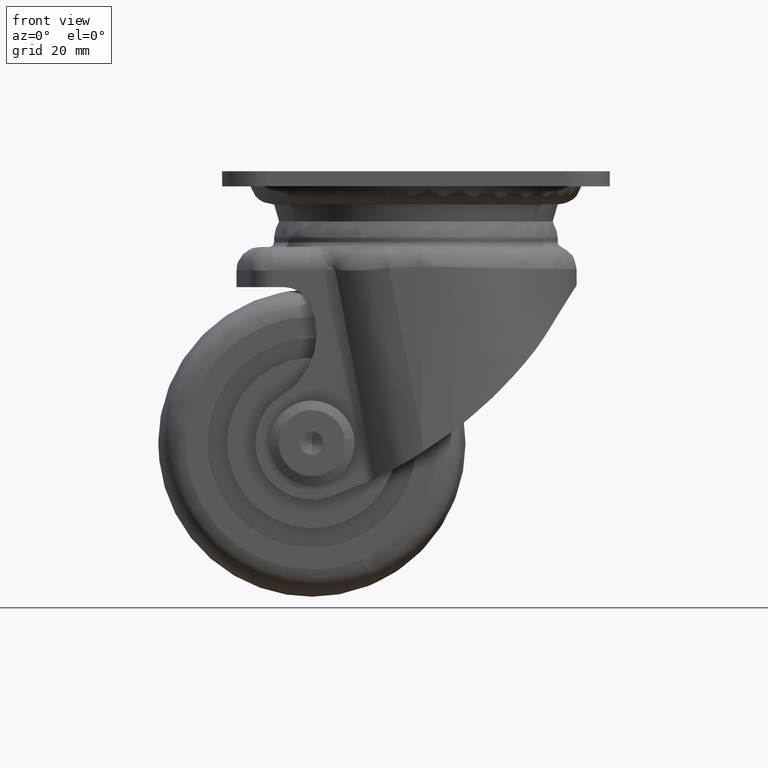
[diagram: clean part render]
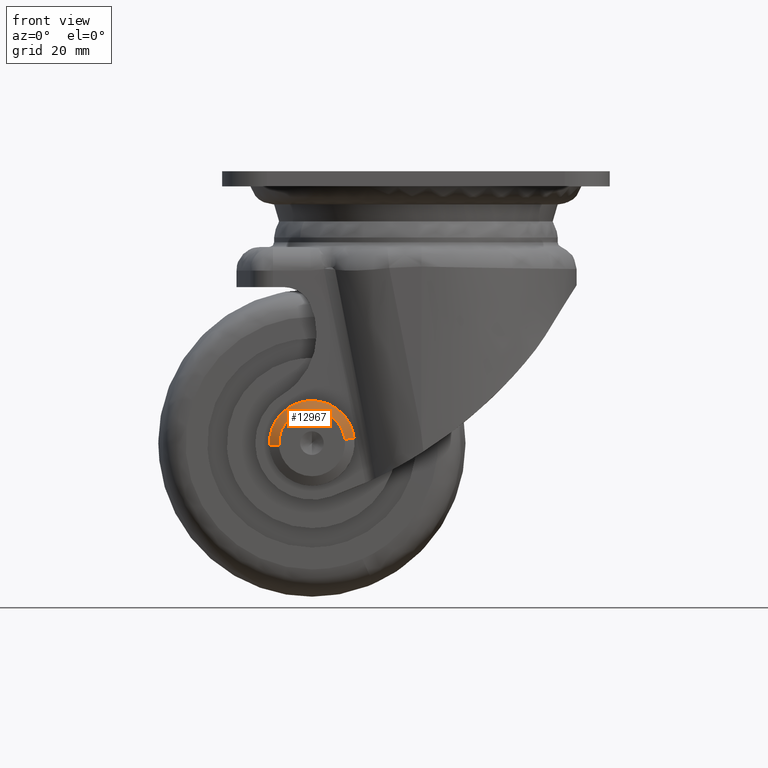
[diagram: same view with one face highlighted and labeled with its STEP entity id]
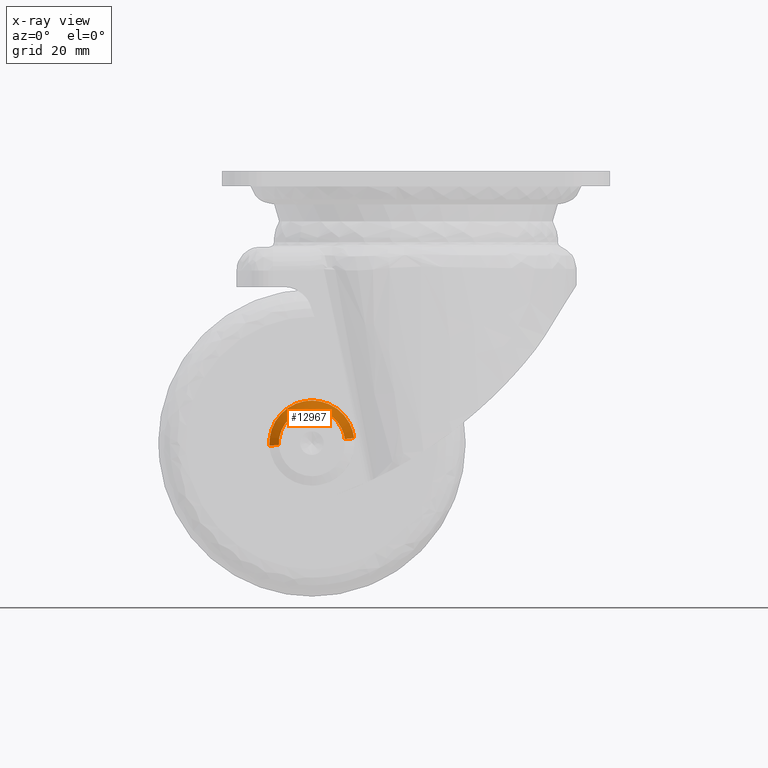
[diagram: x-ray of the same camera — body ghosted, the highlighted face saturated]
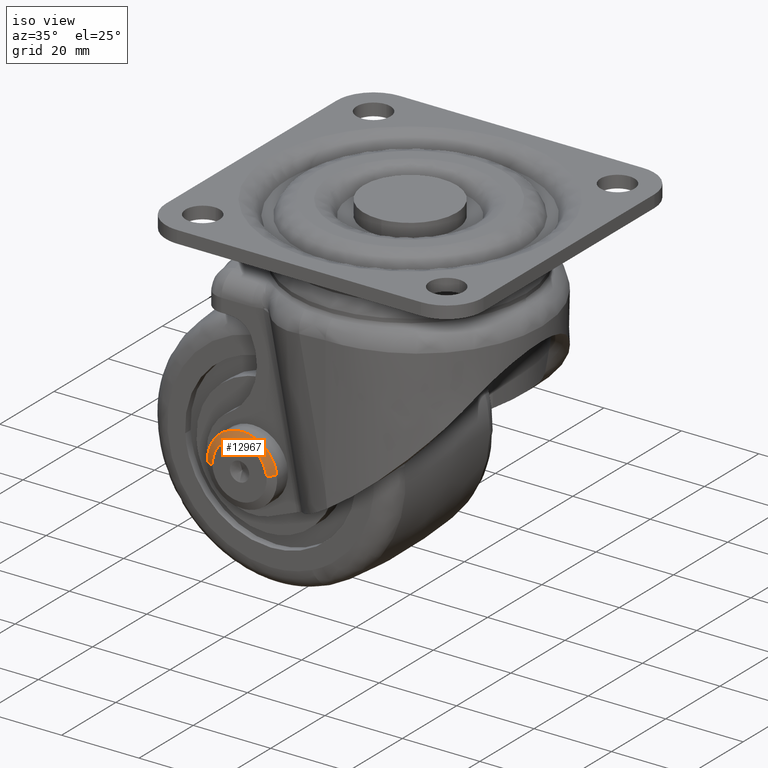
[diagram: same view with one face highlighted and labeled with its STEP entity id]
A machine part, front view. The second image highlights one B-rep face of the part: STEP entity #12967.
The next image is the same camera in x-ray: the body ghosted, the highlighted face saturated — about 0% of this face is hidden behind the body in this view.
A second angle (iso view) of the same face is appended — the face is thin or edge-on in the first view.
In plain terms, the highlighted face is a freeform B-spline surface patch.
Its self-contained STEP definition (entity closure, byte-faithful):
#12675=CARTESIAN_POINT('',(-8.983214683009809,-29.699996999981870,-58.049436947509733));
#12676=VERTEX_POINT('',#12675);
#12757=CARTESIAN_POINT('',(8.937087727342478,-29.699996997588169,-56.437691645228817));
#12758=VERTEX_POINT('',#12757);
#12808=CARTESIAN_POINT('',(0.0,-29.699996999999950,-48.499997999999778));
#12809=VERTEX_POINT('',#12808);
#12810=CARTESIAN_POINT('',(-8.983214683009809,-29.699996999981870,-58.049436947509726));
#12811=CARTESIAN_POINT('',(-9.000002000000222,-29.699996999999950,-57.774974931037697));
#12812=CARTESIAN_POINT('',(-9.000002000000221,-29.699996999999950,-57.500000000000000));
#12813=CARTESIAN_POINT('',(-9.000002000000221,-29.699996999999950,-48.499997999999771));
#12814=CARTESIAN_POINT('',(0.0,-29.699996999999950,-48.499997999999778));
#12822=(BOUNDED_CURVE()B_SPLINE_CURVE(2,(#12810,#12811,#12812,#12813,#12814),.UNSPECIFIED.,.F.,.U.)B_SPLINE_CURVE_WITH_KNOTS((3,2,3),(0.739332962232588,0.750000000000000,1.0),.UNSPECIFIED.)CURVE()GEOMETRIC_REPRESENTATION_ITEM()RATIONAL_B_SPLINE_CURVE((0.976072041653098,0.987502787892392,1.0,0.707106781186547,1.0))REPRESENTATION_ITEM(''));
#12823=EDGE_CURVE('',#12676,#12809,#12822,.T.);
#12825=CARTESIAN_POINT('',(0.0,-29.699996999999950,-48.499997999999778));
#12826=CARTESIAN_POINT('',(7.993572498702038,-29.699996999999957,-48.499997999999785));
#12827=CARTESIAN_POINT('',(8.937087727342478,-29.699996997588165,-56.437691645228817));
#12835=(BOUNDED_CURVE()B_SPLINE_CURVE(2,(#12825,#12826,#12827),.UNSPECIFIED.,.F.,.U.)B_SPLINE_CURVE_WITH_KNOTS((3,3),(0.0,0.229562473280305),.UNSPECIFIED.)CURVE()GEOMETRIC_REPRESENTATION_ITEM()RATIONAL_B_SPLINE_CURVE((1.0,0.731050833128617,0.956026753726611))REPRESENTATION_ITEM(''));
#12836=EDGE_CURVE('',#12809,#12758,#12835,.T.);
#12864=CARTESIAN_POINT('',(6.951067677560333,-30.699996999985430,-56.673760239163080));
#12865=VERTEX_POINT('',#12864);
#12866=CARTESIAN_POINT('',(6.951067677560333,-30.699996999985430,-56.673760239163080));
#12867=CARTESIAN_POINT('',(8.937087727342478,-29.699996997588169,-56.437691645228817));
#12868=QUASI_UNIFORM_CURVE('',1,(#12866,#12867),.UNSPECIFIED.,.F.,.U.);
#12869=EDGE_CURVE('',#12865,#12758,#12868,.T.);
#12888=CARTESIAN_POINT('',(-6.986944587142727,-30.699996999953740,-57.927339838414362));
#12889=VERTEX_POINT('',#12888);
#12903=CARTESIAN_POINT('',(-6.986944587142727,-30.699996999953740,-57.927339838414362));
#12904=CARTESIAN_POINT('',(-8.983214683009809,-29.699996999981870,-58.049436947509733));
#12905=QUASI_UNIFORM_CURVE('',1,(#12903,#12904),.UNSPECIFIED.,.F.,.U.);
#12906=EDGE_CURVE('',#12889,#12676,#12905,.T.);
#12913=CARTESIAN_POINT('',(-6.937037822213704,-30.724996999999949,-57.924287409289597));
#12914=CARTESIAN_POINT('',(-7.361325231503304,-30.724996999999956,-50.987249587075887));
#12915=CARTESIAN_POINT('',(-0.424287409289601,-30.724996999999949,-50.562962177786297));
#12916=CARTESIAN_POINT('',(6.126728120839702,-30.724996999999945,-50.162284903317079));
#12917=CARTESIAN_POINT('',(6.901417176412069,-30.724996999999952,-56.679661954052122));
#12918=CARTESIAN_POINT('',(-9.034369616062939,-29.674371999999948,-58.052565717126342));
#12919=CARTESIAN_POINT('',(-9.586935333189274,-29.674371999999948,-49.018196101063403));
#12920=CARTESIAN_POINT('',(-0.552565717126335,-29.674371999999948,-48.465630383937061));
#12921=CARTESIAN_POINT('',(7.979072307137758,-29.674371999999934,-47.943813048197562));
#12922=CARTESIAN_POINT('',(8.987979486964274,-29.674371999999952,-56.431642394469904));
#12930=(BOUNDED_SURFACE()B_SPLINE_SURFACE(2,1,((#12913,#12918),(#12914,#12919),(#12915,#12920),(#12916,#12921),(#12917,#12922)),.UNSPECIFIED.,.F.,.F.,.U.)B_SPLINE_SURFACE_WITH_KNOTS((3,2,3),(2,2),(0.0,14.996605381883651,29.393346548491952),(0.0,2.349269858568264),.UNSPECIFIED.)GEOMETRIC_REPRESENTATION_ITEM()RATIONAL_B_SPLINE_SURFACE(((1.0,1.0),(0.707106781186548,0.707106781186548),(1.0,1.0),(0.718822509939086,0.718822509939086),(0.977505800795127,0.977505800795127)))REPRESENTATION_ITEM('')SURFACE());
#12931=ORIENTED_EDGE('',*,*,#12836,.F.);
#12932=ORIENTED_EDGE('',*,*,#12823,.F.);
#12933=ORIENTED_EDGE('',*,*,#12906,.F.);
#12934=CARTESIAN_POINT('',(0.0,-30.699996999999950,-50.499998999999690));
#12935=VERTEX_POINT('',#12934);
#12936=CARTESIAN_POINT('',(-6.986944587142727,-30.699996999953743,-57.927339838414355));
#12937=CARTESIAN_POINT('',(-7.000001000000308,-30.699996999999943,-57.713869374260781));
#12938=CARTESIAN_POINT('',(-7.000001000000309,-30.699996999999950,-57.500000000000000));
#12939=CARTESIAN_POINT('',(-7.000001000000310,-30.699996999999950,-50.499998999999683));
#12940=CARTESIAN_POINT('',(0.0,-30.699996999999950,-50.499998999999690));
#12948=(BOUNDED_CURVE()B_SPLINE_CURVE(2,(#12936,#12937,#12938,#12939,#12940),.UNSPECIFIED.,.F.,.U.)B_SPLINE_CURVE_WITH_KNOTS((3,2,3),(0.739332962211536,0.750000000000000,1.0),.UNSPECIFIED.)CURVE()GEOMETRIC_REPRESENTATION_ITEM()RATIONAL_B_SPLINE_CURVE((0.976072041607979,0.987502787867728,1.0,0.707106781186548,1.0))REPRESENTATION_ITEM(''));
#12949=EDGE_CURVE('',#12889,#12935,#12948,.T.);
#12950=ORIENTED_EDGE('',*,*,#12949,.T.);
#12951=CARTESIAN_POINT('',(0.0,-30.699996999999950,-50.499998999999690));
#12952=CARTESIAN_POINT('',(6.217222569470645,-30.699996999999946,-50.499998999999676));
#12953=CARTESIAN_POINT('',(6.951067677560334,-30.699996999985427,-56.673760239163080));
#12961=(BOUNDED_CURVE()B_SPLINE_CURVE(2,(#12951,#12952,#12953),.UNSPECIFIED.,.F.,.U.)B_SPLINE_CURVE_WITH_KNOTS((3,3),(0.0,0.229562473505826),.UNSPECIFIED.)CURVE()GEOMETRIC_REPRESENTATION_ITEM()RATIONAL_B_SPLINE_CURVE((1.0,0.731050832864403,0.956026754168642))REPRESENTATION_ITEM(''));
#12962=EDGE_CURVE('',#12935,#12865,#12961,.T.);
#12963=ORIENTED_EDGE('',*,*,#12962,.T.);
#12964=ORIENTED_EDGE('',*,*,#12869,.T.);
#12965=EDGE_LOOP('',(#12931,#12932,#12933,#12950,#12963,#12964));
#12966=FACE_OUTER_BOUND('',#12965,.T.);
#12967=ADVANCED_FACE('',(#12966),#12930,.T.);